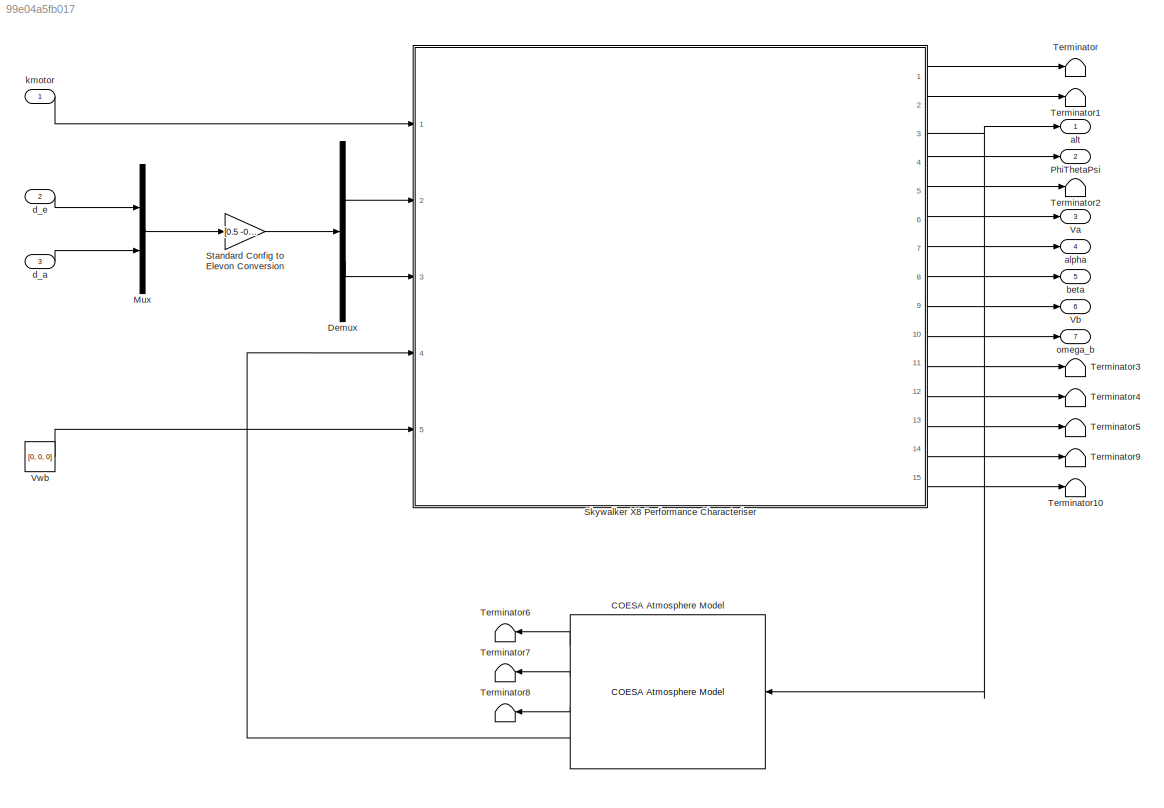
MODEL slx_99e04a5fb017
KIND model
CONFIG AbsTol = auto
CONFIG EnableMultiTasking = off
CONFIG FixedStep = 0.001
CONFIG MaxStep = auto
CONFIG MinStep = auto
CONFIG RelTol = 1e-3
CONFIG SampleTimeConstraint = Unconstrained
CONFIG Solver = FixedStepAuto
CONFIG SolverName = FixedStepAuto
CONFIG StartTime = 0.0
CONFIG StopTime = 0.789
BLOCK [Reference] COESA Atmosphere Model  REF=aerolibatmos2/COESA Atmosphere Model
  Ports = [1, 4]
  SourceBlock = aerolibatmos2/COESA Atmosphere Model
  SourceProductBaseCode = AE
  SourceProductName = Aerospace Blockset
  SourceType = Atmosphere Model
BLOCK [Demux] Demux
  DisplayOption = bar
  Outputs = 2
  Ports = [1, 2]
BLOCK [Mux] Mux
  DisplayOption = bar
  Inputs = 2
  Ports = [2, 1]
BLOCK [Outport] PhiThetaPsi
  IconDisplay = Port number
  Port = 2
BLOCK [ModelReference] Skywalker X8 Performance Characteriser
  ModelNameDialog = SkywalkerX8_AircraftModel
  ModelReferenceVersion = 1.366
  Ports = [5, 15]
BLOCK [Gain] Standard Config to Elevon Conversion
  Gain = [0.5 -0.5;0.5 0.5]
  Multiplication = Matrix(K*u)
  OutDataTypeStr = Inherit: Inherit via internal rule
  ParamDataTypeStr = Inherit: Inherit via internal rule
  SaturateOnIntegerOverflow = off
BLOCK [Terminator] Terminator
BLOCK [Terminator] Terminator1
BLOCK [Terminator] Terminator10
BLOCK [Terminator] Terminator2
BLOCK [Terminator] Terminator3
BLOCK [Terminator] Terminator4
BLOCK [Terminator] Terminator5
BLOCK [Terminator] Terminator6
BLOCK [Terminator] Terminator7
BLOCK [Terminator] Terminator8
BLOCK [Terminator] Terminator9
BLOCK [Outport] Va
  IconDisplay = Port number
  Port = 3
BLOCK [Outport] Vb
  IconDisplay = Port number
  Port = 6
BLOCK [Constant] Vwb
  Value = [0, 0, 0]
BLOCK [Outport] alpha
  IconDisplay = Port number
  Port = 4
BLOCK [Outport] alt
  IconDisplay = Port number
BLOCK [Outport] beta
  IconDisplay = Port number
  Port = 5
BLOCK [Inport] d_a
  IconDisplay = Port number
  Port = 3
BLOCK [Inport] d_e
  IconDisplay = Port number
  Port = 2
BLOCK [Inport] kmotor
  IconDisplay = Port number
BLOCK [Outport] omega_b
  IconDisplay = Port number
  Port = 7
LINE COESA Atmosphere Model:1 -> Terminator6:1
LINE COESA Atmosphere Model:2 -> Terminator7:1
LINE COESA Atmosphere Model:3 -> Terminator8:1
LINE COESA Atmosphere Model:4 -> Skywalker X8 Performance Characteriser:4
LINE Demux:1 -> Skywalker X8 Performance Characteriser:2
LINE Demux:2 -> Skywalker X8 Performance Characteriser:3
LINE Mux:1 -> Standard Config to Elevon Conversion:1
LINE Skywalker X8 Performance Characteriser:1 -> Terminator:1
LINE Skywalker X8 Performance Characteriser:10 -> omega_b:1
LINE Skywalker X8 Performance Characteriser:11 -> Terminator3:1
LINE Skywalker X8 Performance Characteriser:12 -> Terminator4:1
LINE Skywalker X8 Performance Characteriser:13 -> Terminator5:1
LINE Skywalker X8 Performance Characteriser:14 -> Terminator9:1
LINE Skywalker X8 Performance Characteriser:15 -> Terminator10:1
LINE Skywalker X8 Performance Characteriser:2 -> Terminator1:1
NET Skywalker X8 Performance Characteriser:3 -> COESA Atmosphere Model:1, alt:1
LINE Skywalker X8 Performance Characteriser:4 -> PhiThetaPsi:1
LINE Skywalker X8 Performance Characteriser:5 -> Terminator2:1
LINE Skywalker X8 Performance Characteriser:6 -> Va:1
LINE Skywalker X8 Performance Characteriser:7 -> alpha:1
LINE Skywalker X8 Performance Characteriser:8 -> beta:1
LINE Skywalker X8 Performance Characteriser:9 -> Vb:1
LINE Standard Config to Elevon Conversion:1 -> Demux:1
LINE Vwb:1 -> Skywalker X8 Performance Characteriser:5
LINE d_a:1 -> Mux:2
LINE d_e:1 -> Mux:1
LINE kmotor:1 -> Skywalker X8 Performance Characteriser:1
note: NET lines group one-source signal fan-out (src -> all destinations, sorted); 1:1 wires keep LINE
